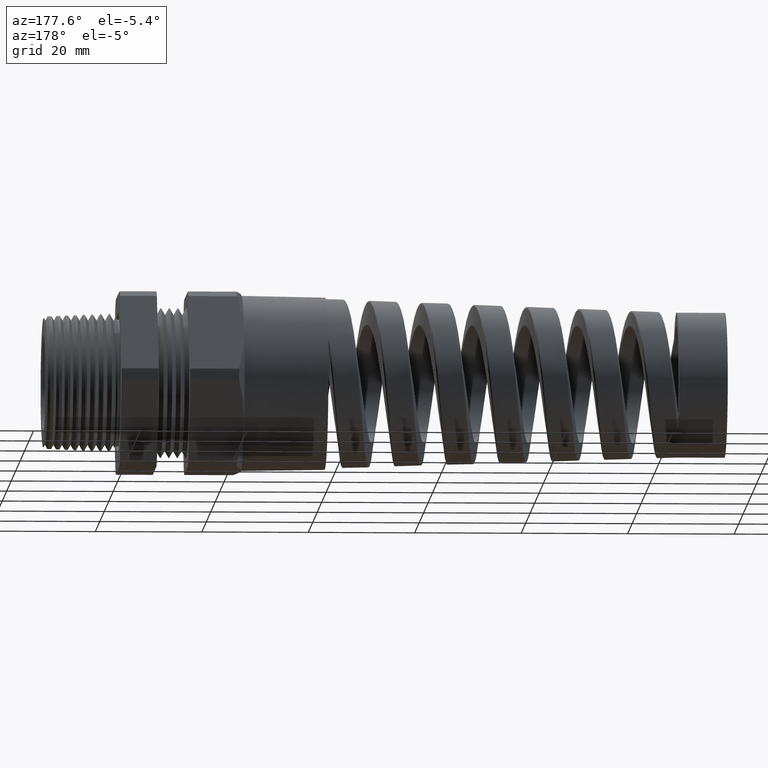
[diagram: clean part render]
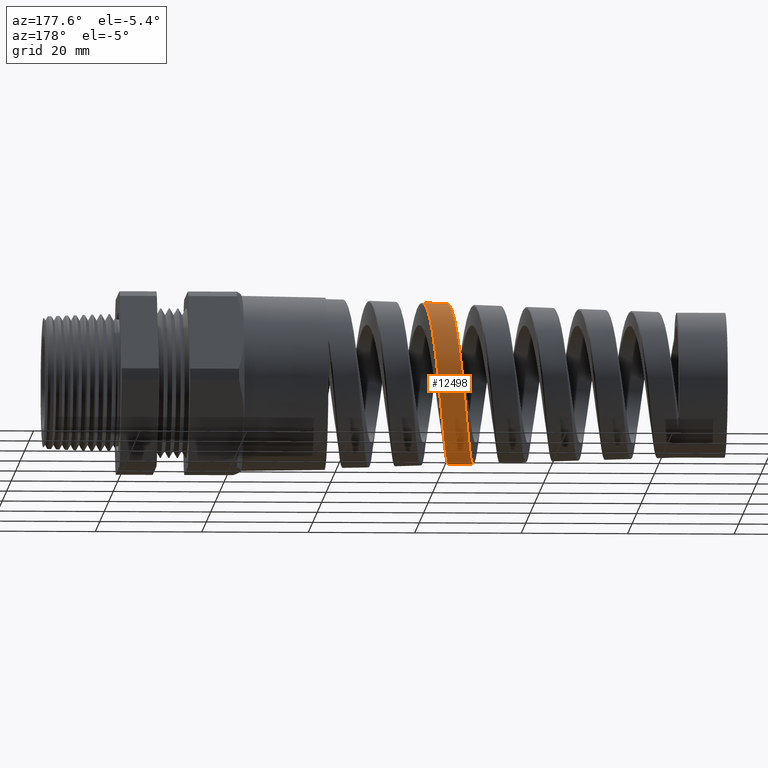
[diagram: same view with one face highlighted and labeled with its STEP entity id]
A machine part, auxiliary view. The second image highlights one B-rep face of the part: STEP entity #12498.
In plain terms, the highlighted conical surface has half-angle 2.001 deg.
Its self-contained STEP definition (entity closure, byte-faithful):
#8264 = CARTESIAN_POINT ( 'NONE',  ( -2.385115047305999400, 0.4762507939232769600, -0.3631031040364940400 ) ) ;
#8265 = CARTESIAN_POINT ( 'NONE',  ( -2.383071780841360200, 0.4880795791769889600, -0.3471703180095643800 ) ) ;
#8266 = CARTESIAN_POINT ( 'NONE',  ( -2.376963535274584600, 0.5209885518779535700, -0.2979017531788499300 ) ) ;
#8267 = CARTESIAN_POINT ( 'NONE',  ( -2.372947815272615100, 0.5393961528386960200, -0.2633735536743796500 ) ) ;
#8268 = CARTESIAN_POINT ( 'NONE',  ( -2.366897879397947200, 0.5618537009647941400, -0.2091384493191771600 ) ) ;
#8269 = CARTESIAN_POINT ( 'NONE',  ( -2.364877644392961100, 0.5684744379298674000, -0.1906499426558395700 ) ) ;
#8270 = CARTESIAN_POINT ( 'NONE',  ( -2.360808404552686500, 0.5799342574389552100, -0.1528307205363841600 ) ) ;
#8271 = CARTESIAN_POINT ( 'NONE',  ( -2.358769508248608200, 0.5847342175111881500, -0.1335923187752422700 ) ) ;
#8272 = CARTESIAN_POINT ( 'NONE',  ( -2.352708372204473700, 0.5961691322117720300, -0.07584480609229550500 ) ) ;
#8273 = CARTESIAN_POINT ( 'NONE',  ( -2.348701620150349000, 0.5999809535906239800, -0.03694396940805017700 ) ) ;
#8274 = CARTESIAN_POINT ( 'NONE',  ( -2.342636281288690700, 0.5999616092384340000, 0.02200206383301916300 ) ) ;
#8275 = CARTESIAN_POINT ( 'NONE',  ( -2.340593970783384500, 0.5989776140398530600, 0.04186062241277808300 ) ) ;
#8276 = CARTESIAN_POINT ( 'NONE',  ( -2.336538213336592000, 0.5950779780717065900, 0.08110952150824291000 ) ) ;
#8277 = CARTESIAN_POINT ( 'NONE',  ( -2.334523950365243300, 0.5921762234779479600, 0.1005080041745640600 ) ) ;
#8278 = CARTESIAN_POINT ( 'NONE',  ( -2.328491363539466600, 0.5806878135735017400, 0.1580396556203558800 ) ) ;
#8279 = CARTESIAN_POINT ( 'NONE',  ( -2.324483241092535600, 0.5693446253734548700, 0.1955153855471900800 ) ) ;
#8280 = CARTESIAN_POINT ( 'NONE',  ( -2.318384508565154400, 0.5466113135835791700, 0.2503536587817308800 ) ) ;
#8281 = CARTESIAN_POINT ( 'NONE',  ( -2.316356832853421200, 0.5381433689147325800, 0.2682174726857902100 ) ) ;
#8282 = CARTESIAN_POINT ( 'NONE',  ( -2.312329969789667300, 0.5196393139605123300, 0.3027919560741961200 ) ) ;
#8283 = CARTESIAN_POINT ( 'NONE',  ( -2.310324554415851100, 0.5095800249485065200, 0.3195589978768799100 ) ) ;
#8284 = CARTESIAN_POINT ( 'NONE',  ( -2.306310308426202200, 0.4878639421213443700, 0.3520612805872822000 ) ) ;
#8285 = CARTESIAN_POINT ( 'NONE',  ( -2.304301507760893900, 0.4762071813459135000, 0.3677965465044866800 ) ) ;
#8286 = CARTESIAN_POINT ( 'NONE',  ( -2.300262703503719300, 0.4512675481868051500, 0.3982146237189012600 ) ) ;
#8287 = CARTESIAN_POINT ( 'NONE',  ( -2.298222825485148200, 0.4379088941427902200, 0.4129649535706212400 ) ) ;
#8288 = CARTESIAN_POINT ( 'NONE',  ( -2.292160660060757600, 0.3961277547650073900, 0.4547592937534801800 ) ) ;
#8289 = CARTESIAN_POINT ( 'NONE',  ( -2.288170611002684900, 0.3659044476449933000, 0.4795700579978571200 ) ) ;
#8290 = CARTESIAN_POINT ( 'NONE',  ( -2.282143875442819200, 0.3170874283025584800, 0.5122807274878085100 ) ) ;
#8291 = CARTESIAN_POINT ( 'NONE',  ( -2.280128267130168600, 0.3002306942802509000, 0.5224281791439728800 ) ) ;
#8292 = CARTESIAN_POINT ( 'NONE',  ( -2.276065630459356300, 0.2653095068169900000, 0.5411575430051509500 ) ) ;
#8293 = CARTESIAN_POINT ( 'NONE',  ( -2.274048866930499900, 0.2475014422973511900, 0.5495998192275762800 ) ) ;
#8294 = CARTESIAN_POINT ( 'NONE',  ( -2.268027173246123200, 0.1932224621747737100, 0.5721778290138539400 ) ) ;
#8295 = CARTESIAN_POINT ( 'NONE',  ( -2.264042536914566500, 0.1558389242986274700, 0.5836250965316195400 ) ) ;
#8296 = CARTESIAN_POINT ( 'NONE',  ( -2.257994174562925500, 0.09795572121622360400, 0.5953159591673876600 ) ) ;
#8297 = CARTESIAN_POINT ( 'NONE',  ( -2.255957923618888000, 0.07827548338810060000, 0.5982934697016506500 ) ) ;
#8298 = CARTESIAN_POINT ( 'NONE',  ( -2.251928597668971100, 0.03911201556386943000, 0.6022641960838914800 ) ) ;
#8299 = CARTESIAN_POINT ( 'NONE',  ( -2.249926788725161500, 0.01954719861990661400, 0.6032817716101509500 ) ) ;
#8300 = CARTESIAN_POINT ( 'NONE',  ( -2.247927336442952800, 7.797707554336084300E-013, 0.6033516153348287300 ) ) ;
#8301 = B_SPLINE_CURVE_WITH_KNOTS ( 'NONE', 3,
 ( #8300, #8299, #8298, #8297, #8296, #8295, #8294, #8293, #8292, #8291, #8290, #8289, #8288, #8287, #8286, #8285, #8284, #8283, #8282, #8281, #8280, #8279, #8278, #8277, #8276, #8275, #8274, #8273, #8272, #8271, #8270, #8269, #8268, #8267, #8266, #8265, #8264, #8340, #8339, #8338, #8337, #8336, #8335, #8334, #8333, #8332, #8331, #8330, #8329, #8328, #8327, #8326 ),
 .UNSPECIFIED., .F., .F.,
 ( 4, 2, 2, 2, 2, 2, 2, 2, 2, 2, 2, 2, 2, 2, 2, 2, 2, 2, 2, 2, 2, 2, 2, 2, 2, 4 ),
 ( 0.1828186597504424500, 0.1843269465661568600, 0.1858352333818712700, 0.1888518070133001200, 0.1903600938290145300, 0.1918683806447289400, 0.1948849542761577600, 0.1963932410918721700, 0.1979015279075865800, 0.1994098147233009900, 0.2009181015390154000, 0.2039346751704442200, 0.2054429619861586300, 0.2069512488018730400, 0.2099678224333018700, 0.2114761092490162800, 0.2129843960647306900, 0.2160009696961595100, 0.2175092565118739400, 0.2190175433275883500, 0.2205258301433027600, 0.2220341169590171700, 0.2250506905904460000, 0.2265589774061604100, 0.2280672642218748200, 0.2310838378533036400 ),
 .UNSPECIFIED. ) ;
#8302 = CARTESIAN_POINT ( 'NONE',  ( -2.441876133044984500, -3.174051836954212700E-016, -0.5965767067925659100 ) ) ;
#8322 = DIRECTION ( 'NONE',  ( 0.9993904554178625300, 0.0000000000000000000, -0.03491013634572578300 ) ) ;
#8323 = VECTOR ( 'NONE', #8322, 39.37007874015748900 ) ;
#8324 = CARTESIAN_POINT ( 'NONE',  ( -0.9125000000000002000, 0.0000000000000000000, -0.6499999999999998000 ) ) ;
#8325 = LINE ( 'NONE', #8324, #8323 ) ;
#8326 = CARTESIAN_POINT ( 'NONE',  ( -2.441876133044984500, -3.174051836954212700E-016, -0.5965767067925659100 ) ) ;
#8327 = CARTESIAN_POINT ( 'NONE',  ( -2.437803783367563400, 0.03934041975051065500, -0.5967189597845927700 ) ) ;
#8328 = CARTESIAN_POINT ( 'NONE',  ( -2.433779323865673700, 0.07825495284754523100, -0.5930052643040492100 ) ) ;
#8329 = CARTESIAN_POINT ( 'NONE',  ( -2.427698515262259900, 0.1359825627245910800, -0.5817113547785164300 ) ) ;
#8330 = CARTESIAN_POINT ( 'NONE',  ( -2.425657154102611300, 0.1551783294432677000, -0.5769672575204493100 ) ) ;
#8331 = CARTESIAN_POINT ( 'NONE',  ( -2.421566572002492800, 0.1930713511704852700, -0.5655666675179355000 ) ) ;
#8332 = CARTESIAN_POINT ( 'NONE',  ( -2.419536992510400900, 0.2115874136867524300, -0.5589717483075756800 ) ) ;
#8333 = CARTESIAN_POINT ( 'NONE',  ( -2.413466226976831700, 0.2658825627113617900, -0.5365893573511954000 ) ) ;
#8334 = CARTESIAN_POINT ( 'NONE',  ( -2.409446330621938200, 0.3004206569960073400, -0.5182283924200265000 ) ) ;
#8335 = CARTESIAN_POINT ( 'NONE',  ( -2.403336937886731300, 0.3496725371887852200, -0.4854174431522954600 ) ) ;
#8336 = CARTESIAN_POINT ( 'NONE',  ( -2.401287603307616300, 0.3656457533094011900, -0.4735889508950995000 ) ) ;
#8337 = CARTESIAN_POINT ( 'NONE',  ( -2.397231634025243100, 0.3960278325390529900, -0.4486811071766619900 ) ) ;
#8338 = CARTESIAN_POINT ( 'NONE',  ( -2.395213553848176200, 0.4105310175244823400, -0.4355426883791903000 ) ) ;
#8339 = CARTESIAN_POINT ( 'NONE',  ( -2.391179171543320200, 0.4381819127261643600, -0.4079195847303920800 ) ) ;
#8340 = CARTESIAN_POINT ( 'NONE',  ( -2.389163373728723400, 0.4513296364243835600, -0.3934348395764196100 ) ) ;
#8639 = CARTESIAN_POINT ( 'NONE',  ( -2.623360512375101400, -1.052045038650056600E-015, -0.5902371981523871800 ) ) ;
#8640 = B_SPLINE_CURVE_WITH_KNOTS ( 'NONE', 3,
 ( #8639, #8723, #8722, #8721, #8720, #8719, #8718, #8717, #8716, #8715, #8714, #8713, #8712, #8711, #8710, #8709, #8708, #8707, #8706, #8705, #8704, #8703, #8702, #8701, #8700, #8699, #8698, #8697, #8696, #8695, #8693, #8692, #8691, #8690, #8689, #8688, #8687, #8686, #8685, #8684, #8683, #8682, #8681, #8680, #8679, #8678, #8677, #8676, #8675, #8674, #8673 ),
 .UNSPECIFIED., .F., .F.,
 ( 4, 2, 1, 2, 2, 2, 2, 2, 2, 2, 2, 2, 2, 2, 2, 2, 2, 2, 2, 2, 2, 2, 2, 2, 2, 4 ),
 ( 0.3535017116551656400, 0.3549973539221203400, 0.3564929961890751000, 0.3579886384560298000, 0.3594842807229845500, 0.3624755652568940100, 0.3639712075238487100, 0.3654668497908034100, 0.3684581343247128600, 0.3699537765916675600, 0.3714494188586222600, 0.3744407033925317200, 0.3759363456594864200, 0.3774319879264411700, 0.3789276301933958700, 0.3804232724603505700, 0.3834145569942600300, 0.3849101992612147200, 0.3864058415281694800, 0.3893971260620788800, 0.3908927683290335800, 0.3923884105959882800, 0.3953796951298977300, 0.3983709796638071900, 0.3998666219307618900, 0.4013622641977165900 ),
 .UNSPECIFIED. ) ;
#8641 = CARTESIAN_POINT ( 'NONE',  ( -2.623360512375101400, -1.052045038650056600E-015, -0.5902371981523871800 ) ) ;
#8642 = DIRECTION ( 'NONE',  ( 0.0000000000000000000, 0.0000000000000000000, -1.000000000000000000 ) ) ;
#8643 = DIRECTION ( 'NONE',  ( 1.000000000000000000, 0.0000000000000000000, 0.0000000000000000000 ) ) ;
#8644 = CARTESIAN_POINT ( 'NONE',  ( -0.9125000000000002000, 0.0000000000000000000, 0.0000000000000000000 ) ) ;
#8645 = AXIS2_PLACEMENT_3D ( 'NONE', #8644, #8643, #8642 ) ;
#8646 = CONICAL_SURFACE ( 'NONE', #8645, 0.6499999999999998000, 0.03491723117042443800 ) ;
#8647 = FACE_OUTER_BOUND ( 'NONE', #12499, .T. ) ;
#8673 = CARTESIAN_POINT ( 'NONE',  ( -2.429438947595266000, 4.469368214588939200E-013, 0.5970111554481969400 ) ) ;
#8674 = CARTESIAN_POINT ( 'NONE',  ( -2.431451217219029500, 0.01945702879427686400, 0.5969408639954784100 ) ) ;
#8675 = CARTESIAN_POINT ( 'NONE',  ( -2.433485515248067900, 0.03911582104091021500, 0.5959053353034838900 ) ) ;
#8676 = CARTESIAN_POINT ( 'NONE',  ( -2.437516661099278000, 0.07788378787468529200, 0.5919453155846016200 ) ) ;
#8677 = CARTESIAN_POINT ( 'NONE',  ( -2.439519363354964100, 0.09705221226931579100, 0.5890304539588499000 ) ) ;
#8678 = CARTESIAN_POINT ( 'NONE',  ( -2.445520410099750300, 0.1539217738957390800, 0.5775430811145585400 ) ) ;
#8679 = CARTESIAN_POINT ( 'NONE',  ( -2.449511626443655400, 0.1909933141921501800, 0.5662541009988937300 ) ) ;
#8680 = CARTESIAN_POINT ( 'NONE',  ( -2.457631528840059000, 0.2633676239565119800, 0.5361170148265785900 ) ) ;
#8681 = CARTESIAN_POINT ( 'NONE',  ( -2.461631294705851400, 0.2975405848753510100, 0.5177316612626803300 ) ) ;
#8682 = CARTESIAN_POINT ( 'NONE',  ( -2.467640031211364000, 0.3457421034931832400, 0.4854555303005793600 ) ) ;
#8683 = CARTESIAN_POINT ( 'NONE',  ( -2.469645658571140200, 0.3613046029781878900, 0.4739044684023225300 ) ) ;
#8684 = CARTESIAN_POINT ( 'NONE',  ( -2.473682314399580800, 0.3913968893123849200, 0.4491848036269376300 ) ) ;
#8685 = CARTESIAN_POINT ( 'NONE',  ( -2.475721677124363800, 0.4059779351733129900, 0.4359535275947442100 ) ) ;
#8686 = CARTESIAN_POINT ( 'NONE',  ( -2.481779647883742200, 0.4472477405219654800, 0.3946240868673479000 ) ) ;
#8687 = CARTESIAN_POINT ( 'NONE',  ( -2.485770459070138800, 0.4717655535755979100, 0.3647152695266697700 ) ) ;
#8688 = CARTESIAN_POINT ( 'NONE',  ( -2.491803469848489900, 0.5040950360678314600, 0.3163699243120533500 ) ) ;
#8689 = CARTESIAN_POINT ( 'NONE',  ( -2.493825362588301300, 0.5141384689259717000, 0.2996455404506254100 ) ) ;
#8690 = CARTESIAN_POINT ( 'NONE',  ( -2.497893575073324400, 0.5326203741427313300, 0.2650892886008115500 ) ) ;
#8691 = CARTESIAN_POINT ( 'NONE',  ( -2.499912109370565200, 0.5409345475400737500, 0.2474958104880685700 ) ) ;
#8692 = CARTESIAN_POINT ( 'NONE',  ( -2.505948807503135500, 0.5631874012207305200, 0.1938030680523237200 ) ) ;
#8693 = CARTESIAN_POINT ( 'NONE',  ( -2.509945250393638800, 0.5744614207746998600, 0.1567996477229219300 ) ) ;
#8695 = CARTESIAN_POINT ( 'NONE',  ( -2.516020085183925400, 0.5859248460797873400, 0.09945979486067943500 ) ) ;
#8696 = CARTESIAN_POINT ( 'NONE',  ( -2.518063228773084200, 0.5888251338149848000, 0.07999216119726991500 ) ) ;
#8697 = CARTESIAN_POINT ( 'NONE',  ( -2.522107683893003200, 0.5926566142493386900, 0.04128106768759635300 ) ) ;
#8698 = CARTESIAN_POINT ( 'NONE',  ( -2.524119776748317400, 0.5936133213619299000, 0.02193646130728070200 ) ) ;
#8699 = CARTESIAN_POINT ( 'NONE',  ( -2.528140988543266900, 0.5936424314910214700, -0.01672948586478660900 ) ) ;
#8700 = CARTESIAN_POINT ( 'NONE',  ( -2.530149738242886100, 0.5927148084644324700, -0.03605086491393853100 ) ) ;
#8701 = CARTESIAN_POINT ( 'NONE',  ( -2.534184374538844200, 0.5889549471317936400, -0.07466800183800878500 ) ) ;
#8702 = CARTESIAN_POINT ( 'NONE',  ( -2.536217738123685900, 0.5861082825036162400, -0.09403450419060280200 ) ) ;
#8703 = CARTESIAN_POINT ( 'NONE',  ( -2.542324938958660900, 0.5746955320396059900, -0.1516105794800101900 ) ) ;
#8704 = CARTESIAN_POINT ( 'NONE',  ( -2.546339189435040200, 0.5634412773304164900, -0.1886646446665183100 ) ) ;
#8705 = CARTESIAN_POINT ( 'NONE',  ( -2.552382765889480000, 0.5412721054866054300, -0.2423050164927084700 ) ) ;
#8706 = CARTESIAN_POINT ( 'NONE',  ( -2.554400890555340400, 0.5329947177668988800, -0.2598593640758665700 ) ) ;
#8707 = CARTESIAN_POINT ( 'NONE',  ( -2.558465728216203800, 0.5146176357534195700, -0.2942969029329393600 ) ) ;
#8708 = CARTESIAN_POINT ( 'NONE',  ( -2.560510854043276800, 0.5045135904789697100, -0.3111590489077321100 ) ) ;
#8709 = CARTESIAN_POINT ( 'NONE',  ( -2.566584994805224200, 0.4721292574387230800, -0.3596234452804663000 ) ) ;
#8710 = CARTESIAN_POINT ( 'NONE',  ( -2.570598625031588200, 0.4476018382168160900, -0.3895122872367052800 ) ) ;
#8711 = CARTESIAN_POINT ( 'NONE',  ( -2.576672184874389900, 0.4064159435290560200, -0.4307098408019349700 ) ) ;
#8712 = CARTESIAN_POINT ( 'NONE',  ( -2.578716640019730600, 0.3918690534660926900, -0.4438958254778145900 ) ) ;
#8713 = CARTESIAN_POINT ( 'NONE',  ( -2.582790967612250000, 0.3616539611412135100, -0.4686606876160266400 ) ) ;
#8714 = CARTESIAN_POINT ( 'NONE',  ( -2.584814340125747300, 0.3460424889472248400, -0.4802086214642380400 ) ) ;
#8715 = CARTESIAN_POINT ( 'NONE',  ( -2.590873544744793000, 0.2977400838937873100, -0.5124154951590963500 ) ) ;
#8716 = CARTESIAN_POINT ( 'NONE',  ( -2.594897358080843700, 0.2635950980898884000, -0.5306608867442897900 ) ) ;
#8717 = CARTESIAN_POINT ( 'NONE',  ( -2.601020302008801200, 0.2093805380154004400, -0.5530314112793761600 ) ) ;
#8718 = CARTESIAN_POINT ( 'NONE',  ( -2.603064826906591000, 0.1909067068353275400, -0.5595968623046710900 ) ) ;
#8719 = CARTESIAN_POINT ( 'NONE',  ( -2.607119087196620600, 0.1537372867140176000, -0.5707814860807547400 ) ) ;
#8720 = CARTESIAN_POINT ( 'NONE',  ( -2.611157338929634500, 0.1161801910086640600, -0.5800903583587849700 ) ) ;
#8721 = CARTESIAN_POINT ( 'NONE',  ( -2.615202117615804200, 0.07786046795921174000, -0.5856894832648087400 ) ) ;
#8722 = CARTESIAN_POINT ( 'NONE',  ( -2.619267666034221800, 0.03915458925451631400, -0.5894010816766984700 ) ) ;
#8723 = CARTESIAN_POINT ( 'NONE',  ( -2.621321865860501100, 0.01949963311946037800, -0.5903084109875705900 ) ) ;
#10426 = CARTESIAN_POINT ( 'NONE',  ( -2.247927336442952800, 7.797707554336084300E-013, 0.6033516153348287300 ) ) ;
#10427 = DIRECTION ( 'NONE',  ( 0.9993904554178625300, 4.275258673359075800E-018, 0.03491013634572578300 ) ) ;
#10428 = VECTOR ( 'NONE', #10427, 39.37007874015748900 ) ;
#10429 = CARTESIAN_POINT ( 'NONE',  ( -0.9125000000000002000, 7.960204194457793000E-017, 0.6499999999999998000 ) ) ;
#10430 = LINE ( 'NONE', #10429, #10428 ) ;
#10431 = CARTESIAN_POINT ( 'NONE',  ( -2.429438947595266000, 4.469368214588939200E-013, 0.5970111554481969400 ) ) ;
#12452 = EDGE_CURVE ( 'NONE', #12533, #12453, #8301, .T. ) ;
#12453 = VERTEX_POINT ( 'NONE', #8302 ) ;
#12454 = ORIENTED_EDGE ( 'NONE', *, *, #12455, .F. ) ;
#12455 = EDGE_CURVE ( 'NONE', #12502, #12453, #8325, .T. ) ;
#12498 = ADVANCED_FACE ( 'NONE', ( #8647 ), #8646, .T. ) ;
#12499 = EDGE_LOOP ( 'NONE', ( #12500, #12531, #12534, #12454 ) ) ;
#12500 = ORIENTED_EDGE ( 'NONE', *, *, #12501, .T. ) ;
#12501 = EDGE_CURVE ( 'NONE', #12502, #12530, #8640, .T. ) ;
#12502 = VERTEX_POINT ( 'NONE', #8641 ) ;
#12530 = VERTEX_POINT ( 'NONE', #10431 ) ;
#12531 = ORIENTED_EDGE ( 'NONE', *, *, #12532, .T. ) ;
#12532 = EDGE_CURVE ( 'NONE', #12530, #12533, #10430, .T. ) ;
#12533 = VERTEX_POINT ( 'NONE', #10426 ) ;
#12534 = ORIENTED_EDGE ( 'NONE', *, *, #12452, .T. ) ;